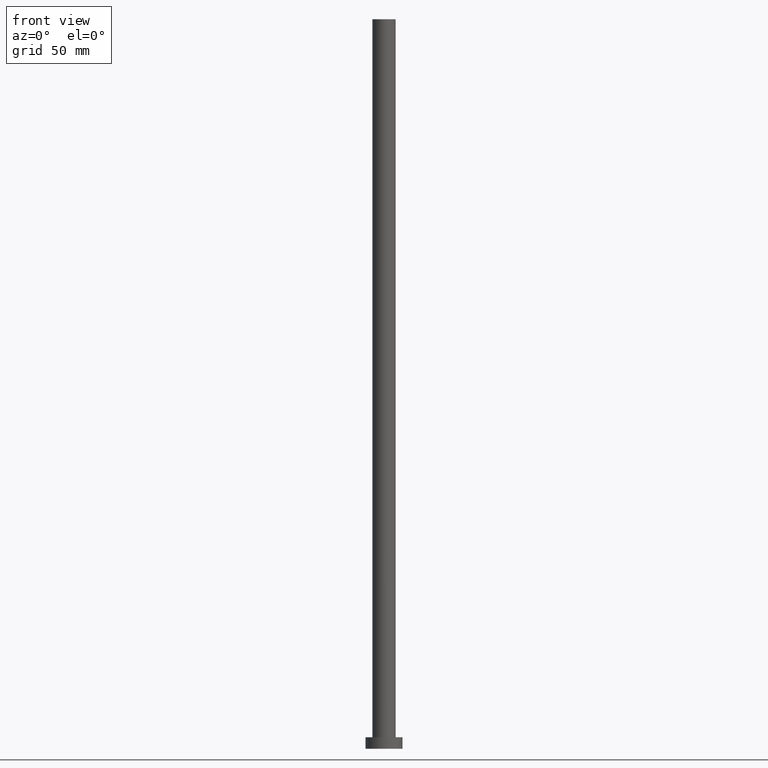
[diagram: clean part render]
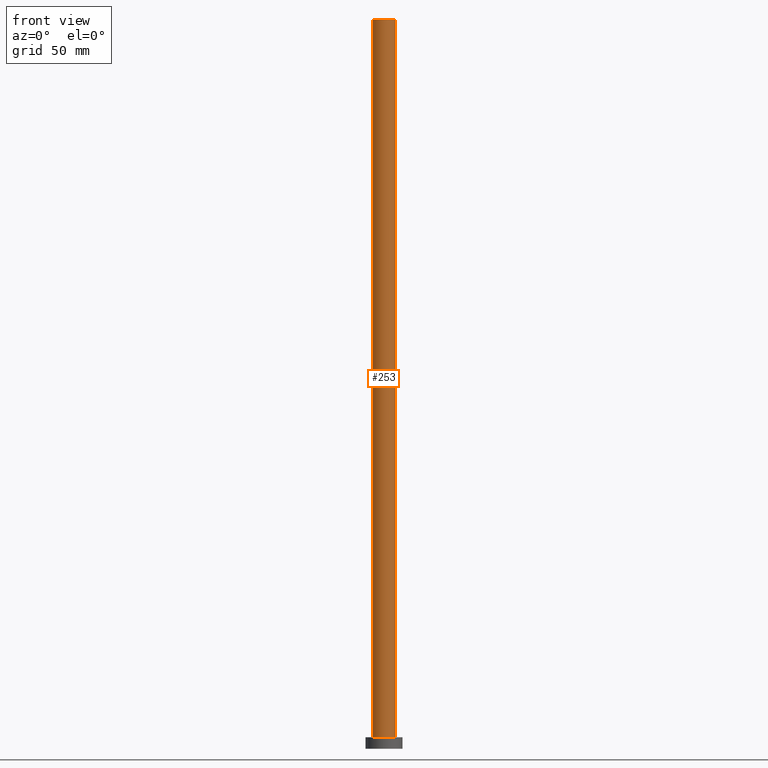
[diagram: same view with one face highlighted and labeled with its STEP entity id]
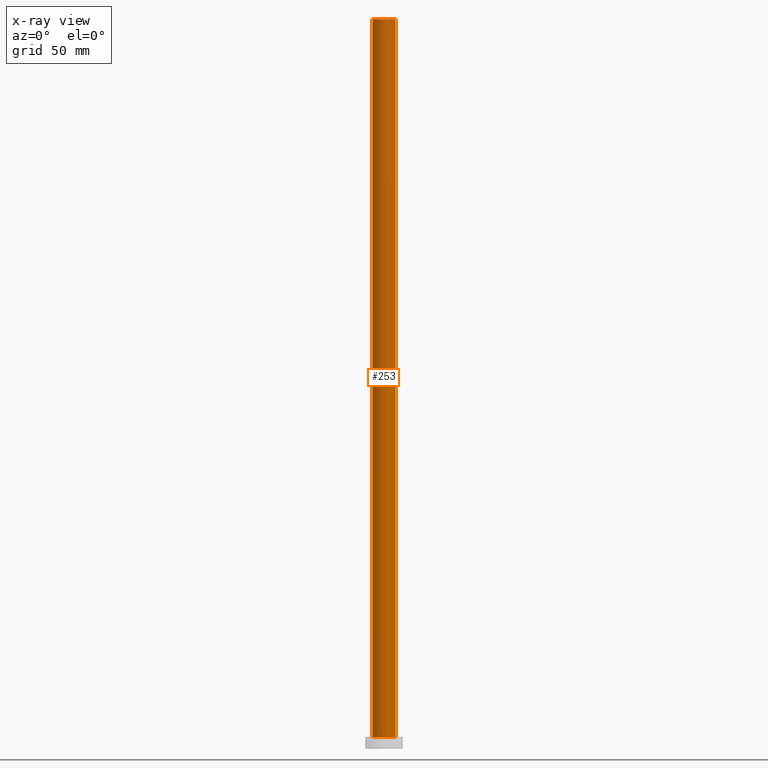
[diagram: x-ray of the same camera — body ghosted, the highlighted face saturated]
A machine part, front view. The second image highlights one B-rep face of the part: STEP entity #253.
The next image is the same camera in x-ray: the body ghosted, the highlighted face saturated — about 0% of this face is hidden behind the body in this view.
In plain terms, the highlighted cylindrical surface (edge-blend (fillet) strip) has radius 5 mm, axis along (-0, -0, -1).
Its self-contained STEP definition (entity closure, byte-faithful):
#8 = CYLINDRICAL_SURFACE ( 'NONE', #92, 5.000000000000000888 ) ;
#13 = EDGE_LOOP ( 'NONE', ( #26, #46, #132, #79 ) ) ;
#26 = ORIENTED_EDGE ( 'NONE', *, *, #178, .F. ) ;
#33 = LINE ( 'NONE', #249, #173 ) ;
#34 = DIRECTION ( 'NONE',  ( 1.000000000000000000, 0.000000000000000000, 0.000000000000000000 ) ) ;
#38 = CARTESIAN_POINT ( 'NONE',  ( 0.000000000000000000, 0.000000000000000000, 315.0000000000000000 ) ) ;
#44 = VERTEX_POINT ( 'NONE', #130 ) ;
#46 = ORIENTED_EDGE ( 'NONE', *, *, #138, .F. ) ;
#62 = DIRECTION ( 'NONE',  ( -1.000000000000000000, 0.000000000000000000, 0.000000000000000000 ) ) ;
#72 = CIRCLE ( 'NONE', #194, 5.000000000000000888 ) ;
#76 = DIRECTION ( 'NONE',  ( -0.000000000000000000, -0.000000000000000000, -1.000000000000000000 ) ) ;
#79 = ORIENTED_EDGE ( 'NONE', *, *, #159, .T. ) ;
#86 = AXIS2_PLACEMENT_3D ( 'NONE', #155, #234, #34 ) ;
#92 = AXIS2_PLACEMENT_3D ( 'NONE', #38, #118, #62 ) ;
#104 = CARTESIAN_POINT ( 'NONE',  ( 0.000000000000000000, 0.000000000000000000, 5.000000000000000000 ) ) ;
#105 = LINE ( 'NONE', #108, #244 ) ;
#108 = CARTESIAN_POINT ( 'NONE',  ( 5.000000000000000888, 6.123233995736767268E-16, 315.0000000000000000 ) ) ;
#109 = CIRCLE ( 'NONE', #86, 5.000000000000000888 ) ;
#112 = CARTESIAN_POINT ( 'NONE',  ( -5.000000000000000888, 0.000000000000000000, 315.0000000000000000 ) ) ;
#118 = DIRECTION ( 'NONE',  ( -0.000000000000000000, -0.000000000000000000, -1.000000000000000000 ) ) ;
#127 = DIRECTION ( 'NONE',  ( 0.000000000000000000, 0.000000000000000000, 1.000000000000000000 ) ) ;
#128 = EDGE_CURVE ( 'NONE', #147, #169, #33, .T. ) ;
#130 = CARTESIAN_POINT ( 'NONE',  ( 5.000000000000000888, 6.123233995736767268E-16, 315.0000000000000000 ) ) ;
#132 = ORIENTED_EDGE ( 'NONE', *, *, #128, .T. ) ;
#138 = EDGE_CURVE ( 'NONE', #147, #44, #109, .T. ) ;
#147 = VERTEX_POINT ( 'NONE', #112 ) ;
#155 = CARTESIAN_POINT ( 'NONE',  ( 0.000000000000000000, 0.000000000000000000, 315.0000000000000000 ) ) ;
#159 = EDGE_CURVE ( 'NONE', #169, #233, #72, .T. ) ;
#164 = FACE_OUTER_BOUND ( 'NONE', #13, .T. ) ;
#169 = VERTEX_POINT ( 'NONE', #242 ) ;
#173 = VECTOR ( 'NONE', #76, 1000.000000000000000 ) ;
#178 = EDGE_CURVE ( 'NONE', #44, #233, #105, .T. ) ;
#192 = DIRECTION ( 'NONE',  ( -0.000000000000000000, -0.000000000000000000, -1.000000000000000000 ) ) ;
#194 = AXIS2_PLACEMENT_3D ( 'NONE', #104, #127, #245 ) ;
#204 = CARTESIAN_POINT ( 'NONE',  ( 5.000000000000000888, 6.123233995736767268E-16, 5.000000000000000000 ) ) ;
#233 = VERTEX_POINT ( 'NONE', #204 ) ;
#234 = DIRECTION ( 'NONE',  ( 0.000000000000000000, 0.000000000000000000, 1.000000000000000000 ) ) ;
#242 = CARTESIAN_POINT ( 'NONE',  ( -5.000000000000000888, 0.000000000000000000, 5.000000000000000000 ) ) ;
#244 = VECTOR ( 'NONE', #192, 1000.000000000000000 ) ;
#245 = DIRECTION ( 'NONE',  ( 1.000000000000000000, 0.000000000000000000, 0.000000000000000000 ) ) ;
#249 = CARTESIAN_POINT ( 'NONE',  ( -5.000000000000000888, 0.000000000000000000, 315.0000000000000000 ) ) ;
#253 = ADVANCED_FACE ( 'NONE', ( #164 ), #8, .T. ) ;